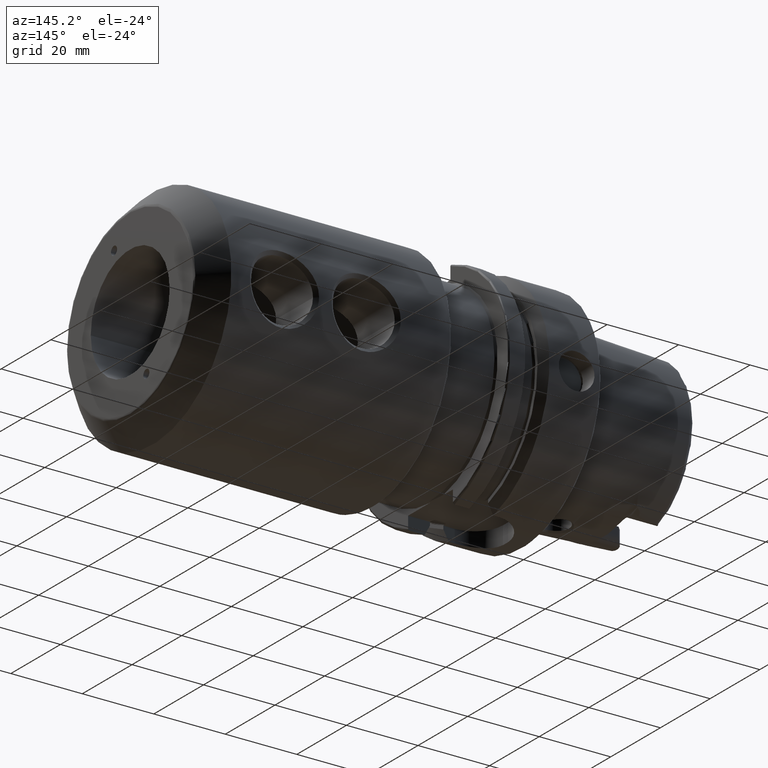
[diagram: clean part render]
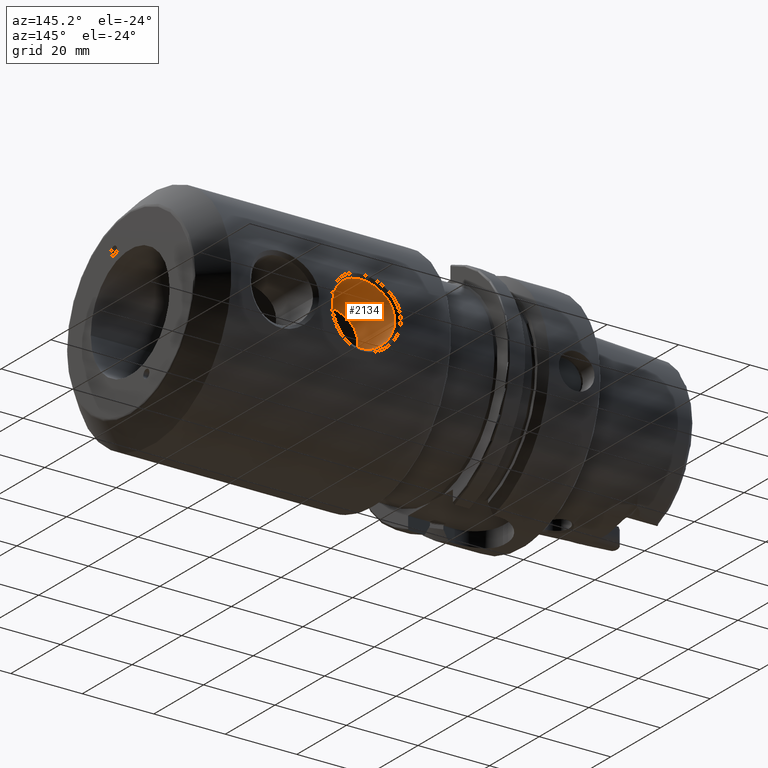
[diagram: same view with one face highlighted and labeled with its STEP entity id]
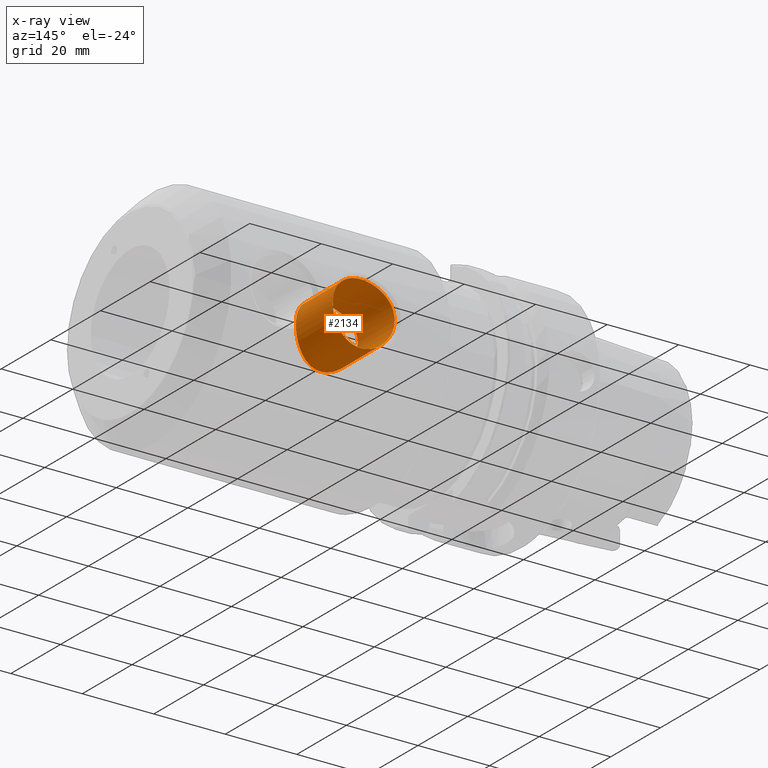
[diagram: x-ray of the same camera — body ghosted, the highlighted face saturated]
A machine part, auxiliary view. The second image highlights one B-rep face of the part: STEP entity #2134.
The next image is the same camera in x-ray: the body ghosted, the highlighted face saturated — about 0% of this face is hidden behind the body in this view.
In plain terms, the highlighted cylindrical surface (bore or boss wall) has radius 8.6614 mm, axis along (0, -1, 0).
Its self-contained STEP definition (entity closure, byte-faithful):
#115=B_SPLINE_CURVE_WITH_KNOTS('',3,(#3344,#3345,#3346,#3347,#3348,#3349,
#3350,#3351,#3352,#3353,#3354,#3355,#3356,#3357,#3358,#3359,#3360,#3361,
#3362,#3363,#3364,#3365,#3366,#3367,#3368,#3369,#3370,#3371,#3372,#3373,
#3374,#3375,#3376),.UNSPECIFIED.,.T.,.F.,(4,1,1,1,1,1,1,1,1,1,1,1,1,1,1,
1,1,1,1,1,1,1,1,1,1,1,1,1,1,1,4),(3.93676515653178,4.12423016398568,4.31169517143957,
4.49916017889347,4.68662518634736,4.87409019380125,5.06155520125515,5.43648521616294,
5.48335146802641,5.62395022361683,5.81141523107073,5.99888023852462,6.0457464903881,
6.18634524597852,6.43629858925038,6.68625193252223,6.93620527579409,7.18615861906595,
7.26426903883841,7.31113529070188,7.43611196233781,7.68606530560967,8.06099532051746,
8.10786157238093,8.24846032797135,8.43592533542525,8.62339034287914,8.67025659474262,
8.81085535033304,8.99832035778693,9.18578536524083),.UNSPECIFIED.);
#117=B_SPLINE_CURVE_WITH_KNOTS('',3,(#3414,#3415,#3416,#3417,#3418,#3419,
#3420,#3421,#3422,#3423),.UNSPECIFIED.,.F.,.F.,(4,2,2,2,4),(0.,0.335135655520429,
0.670271311040858,1.00403758708355,1.33780386312625),.UNSPECIFIED.);
#118=B_SPLINE_CURVE_WITH_KNOTS('',3,(#3424,#3425,#3426,#3427,#3428,#3429,
#3430,#3431,#3432,#3433,#3434,#3435,#3436,#3437,#3438,#3439,#3440,#3441,
#3442,#3443,#3444,#3445,#3446,#3447,#3448,#3449),.UNSPECIFIED.,.F.,.F.,
(4,2,2,2,2,2,2,2,2,2,2,2,4),(1.33780386312625,1.67157013916894,2.00533641521164,
2.34047207073207,2.6756077262525,3.01074338177292,3.34587903729335,3.67964531333605,
4.01341158937874,4.34717786542144,4.68094414146413,5.01607979698456,5.35121545250499),
 .UNSPECIFIED.);
#199=CYLINDRICAL_SURFACE('',#2287,8.6614);
#240=FACE_OUTER_BOUND('',#367,.T.);
#367=EDGE_LOOP('',(#1451,#1452,#1453,#1454,#1455));
#511=LINE('',#3412,#628);
#628=VECTOR('',#2568,8.6614);
#878=VERTEX_POINT('',#3342);
#879=VERTEX_POINT('',#3411);
#880=VERTEX_POINT('',#3413);
#1102=EDGE_CURVE('',#878,#878,#115,.T.);
#1104=EDGE_CURVE('',#878,#879,#511,.T.);
#1105=EDGE_CURVE('',#880,#879,#117,.T.);
#1106=EDGE_CURVE('',#879,#880,#118,.T.);
#1451=ORIENTED_EDGE('',*,*,#1102,.F.);
#1452=ORIENTED_EDGE('',*,*,#1104,.T.);
#1453=ORIENTED_EDGE('',*,*,#1105,.F.);
#1454=ORIENTED_EDGE('',*,*,#1106,.F.);
#1455=ORIENTED_EDGE('',*,*,#1104,.F.);
#2134=ADVANCED_FACE('',(#240),#199,.F.);
#2287=AXIS2_PLACEMENT_3D('',#3410,#2566,#2567);
#2566=DIRECTION('center_axis',(0.,-1.,0.));
#2567=DIRECTION('ref_axis',(1.,0.,0.));
#2568=DIRECTION('',(0.,-1.,0.));
#3342=CARTESIAN_POINT('',(57.3786,30.75,2.4980018054066E-15));
#3344=CARTESIAN_POINT('Ctrl Pts',(57.3786,30.75,2.4980018054066E-15));
#3345=CARTESIAN_POINT('Ctrl Pts',(57.3786,30.75,-0.605201992567694));
#3346=CARTESIAN_POINT('Ctrl Pts',(57.5100478276712,30.7127884585355,-1.86166085693618));
#3347=CARTESIAN_POINT('Ctrl Pts',(58.1290237342265,30.5442356072892,-3.70706460648474));
#3348=CARTESIAN_POINT('Ctrl Pts',(59.1592161499617,30.2948640700577,-5.37197970182444));
#3349=CARTESIAN_POINT('Ctrl Pts',(60.4529445706849,30.0318928062084,-6.70624142732463));
#3350=CARTESIAN_POINT('Ctrl Pts',(62.1231047334539,29.7711224691976,-7.81847908629239));
#3351=CARTESIAN_POINT('Ctrl Pts',(64.7130330001751,29.525508740696,-8.74115856356557));
#3352=CARTESIAN_POINT('Ctrl Pts',(66.8633649919346,29.525213923795,-8.74051209635036));
#3353=CARTESIAN_POINT('Ctrl Pts',(68.8285711400773,29.6637939103924,-8.22230748618684));
#3354=CARTESIAN_POINT('Ctrl Pts',(70.0906238977548,29.792614234419,-7.7256521516628));
#3355=CARTESIAN_POINT('Ctrl Pts',(71.633510046954,30.0325908469015,-6.70280348523168));
#3356=CARTESIAN_POINT('Ctrl Pts',(72.5948466541547,30.2287933572301,-5.70795700359335));
#3357=CARTESIAN_POINT('Ctrl Pts',(73.3523146952769,30.3989834049113,-4.67722227639004));
#3358=CARTESIAN_POINT('Ctrl Pts',(74.110957352013,30.5855329697231,-3.37089934645009));
#3359=CARTESIAN_POINT('Ctrl Pts',(74.7330465011592,30.7586752790938,-1.21878783334659));
#3360=CARTESIAN_POINT('Ctrl Pts',(74.7350456763772,30.7595447379943,1.21732574041456));
#3361=CARTESIAN_POINT('Ctrl Pts',(74.0059323974077,30.5556363562227,3.73750398810933));
#3362=CARTESIAN_POINT('Ctrl Pts',(72.8763296374178,30.2849880363446,5.40569501687545));
#3363=CARTESIAN_POINT('Ctrl Pts',(72.009423136196,30.1129657285638,6.28559819980269));
#3364=CARTESIAN_POINT('Ctrl Pts',(71.3673890186076,29.9954870772571,6.84766968797044));
#3365=CARTESIAN_POINT('Ctrl Pts',(70.1687646292333,29.7992687748746,7.71114208770097));
#3366=CARTESIAN_POINT('Ctrl Pts',(67.5879260163699,29.5247112853457,8.74424701332087));
#3367=CARTESIAN_POINT('Ctrl Pts',(65.2180587327259,29.5252622809256,8.73966901002757));
#3368=CARTESIAN_POINT('Ctrl Pts',(63.2510640610123,29.6637694376379,8.22296333666625));
#3369=CARTESIAN_POINT('Ctrl Pts',(61.9898392752521,29.7925817382859,7.72546650492461));
#3370=CARTESIAN_POINT('Ctrl Pts',(60.445993037525,30.0326800875029,6.70328574476961));
#3371=CARTESIAN_POINT('Ctrl Pts',(59.4857492220143,30.2285894772312,5.70738992088283));
#3372=CARTESIAN_POINT('Ctrl Pts',(58.7271403573498,30.3991452472844,4.67764185906041));
#3373=CARTESIAN_POINT('Ctrl Pts',(58.0806799506321,30.5577651674543,3.55452217671392));
#3374=CARTESIAN_POINT('Ctrl Pts',(57.5075901784258,30.7131444505185,1.86098353713226));
#3375=CARTESIAN_POINT('Ctrl Pts',(57.3786,30.75,0.605201992567687));
#3376=CARTESIAN_POINT('Ctrl Pts',(57.3786,30.75,0.));
#3410=CARTESIAN_POINT('Origin',(66.04,-136.263694191513,0.));
#3411=CARTESIAN_POINT('',(57.3786,15.875,-1.08546930161932E-15));
#3412=CARTESIAN_POINT('',(57.3786,-136.263694191513,-1.06071557861349E-15));
#3413=CARTESIAN_POINT('',(66.04,13.3039759109824,-8.6614));
#3414=CARTESIAN_POINT('Ctrl Pts',(66.04,13.3039759109824,-8.6614));
#3415=CARTESIAN_POINT('Ctrl Pts',(64.9228811482652,13.3039759109824,-8.6614));
#3416=CARTESIAN_POINT('Ctrl Pts',(63.7538820069251,13.4596424228962,-8.43319660129859));
#3417=CARTESIAN_POINT('Ctrl Pts',(61.6303894712631,13.9778479980301,-7.54324290825644));
#3418=CARTESIAN_POINT('Ctrl Pts',(60.6729660438442,14.3292484464552,-6.88203539298256));
#3419=CARTESIAN_POINT('Ctrl Pts',(59.1610597892849,14.9614834588893,-5.37012913842324));
#3420=CARTESIAN_POINT('Ctrl Pts',(58.4976281830587,15.2884598474176,-4.41173993002517));
#3421=CARTESIAN_POINT('Ctrl Pts',(57.6058109875665,15.7475449872049,-2.28369910750552));
#3422=CARTESIAN_POINT('Ctrl Pts',(57.3786,15.875,-1.11255425347565));
#3423=CARTESIAN_POINT('Ctrl Pts',(57.3786,15.875,-5.55111512312578E-16));
#3424=CARTESIAN_POINT('Ctrl Pts',(57.3786,15.875,-1.11022302462516E-15));
#3425=CARTESIAN_POINT('Ctrl Pts',(57.3786,15.875,1.11255425347565));
#3426=CARTESIAN_POINT('Ctrl Pts',(57.6058109875665,15.7475449872049,2.28369910750551));
#3427=CARTESIAN_POINT('Ctrl Pts',(58.4976281830587,15.2884598474176,4.41173993002516));
#3428=CARTESIAN_POINT('Ctrl Pts',(59.1610597892849,14.9614834588893,5.37012913842324));
#3429=CARTESIAN_POINT('Ctrl Pts',(60.6729660438442,14.3292484464552,6.88203539298256));
#3430=CARTESIAN_POINT('Ctrl Pts',(61.6303894712631,13.9778479980301,7.54324290825644));
#3431=CARTESIAN_POINT('Ctrl Pts',(63.7538820069251,13.4596424228962,8.43319660129859));
#3432=CARTESIAN_POINT('Ctrl Pts',(64.9228811482652,13.3039759109824,8.6614));
#3433=CARTESIAN_POINT('Ctrl Pts',(67.1571188517348,13.3039759109824,8.6614));
#3434=CARTESIAN_POINT('Ctrl Pts',(68.3261179930749,13.4596424228962,8.43319660129859));
#3435=CARTESIAN_POINT('Ctrl Pts',(70.449610528737,13.9778479980301,7.54324290825644));
#3436=CARTESIAN_POINT('Ctrl Pts',(71.4070339561558,14.3292484464552,6.88203539298257));
#3437=CARTESIAN_POINT('Ctrl Pts',(72.9189402107151,14.9614834588892,5.37012913842325));
#3438=CARTESIAN_POINT('Ctrl Pts',(73.5823718169413,15.2884598474176,4.41173993002518));
#3439=CARTESIAN_POINT('Ctrl Pts',(74.4741890124335,15.7475449872049,2.28369910750552));
#3440=CARTESIAN_POINT('Ctrl Pts',(74.7014,15.875,1.11255425347565));
#3441=CARTESIAN_POINT('Ctrl Pts',(74.7014,15.875,-1.11255425347565));
#3442=CARTESIAN_POINT('Ctrl Pts',(74.4741890124335,15.7475449872049,-2.28369910750551));
#3443=CARTESIAN_POINT('Ctrl Pts',(73.5823718169413,15.2884598474176,-4.41173993002516));
#3444=CARTESIAN_POINT('Ctrl Pts',(72.9189402107151,14.9614834588893,-5.37012913842324));
#3445=CARTESIAN_POINT('Ctrl Pts',(71.4070339561558,14.3292484464552,-6.88203539298256));
#3446=CARTESIAN_POINT('Ctrl Pts',(70.449610528737,13.9778479980301,-7.54324290825644));
#3447=CARTESIAN_POINT('Ctrl Pts',(68.3261179930749,13.4596424228962,-8.43319660129859));
#3448=CARTESIAN_POINT('Ctrl Pts',(67.1571188517348,13.3039759109824,-8.6614));
#3449=CARTESIAN_POINT('Ctrl Pts',(66.04,13.3039759109824,-8.6614));